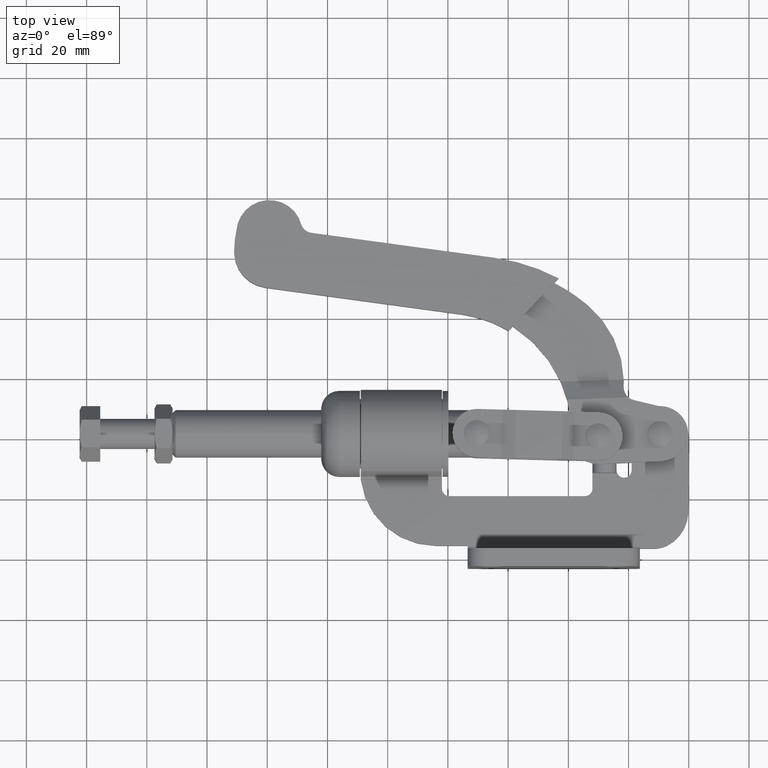
[diagram: clean part render]
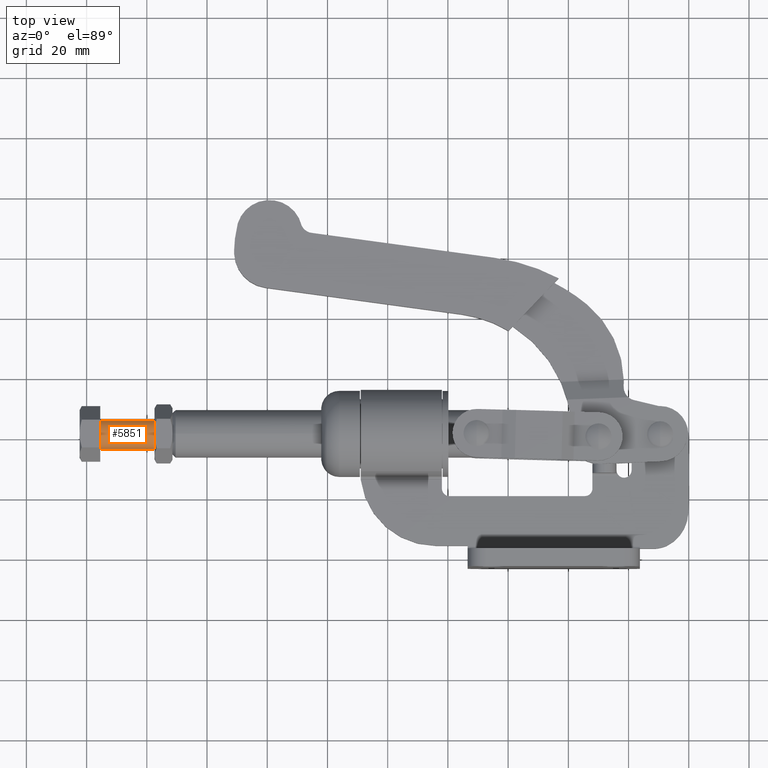
[diagram: same view with one face highlighted and labeled with its STEP entity id]
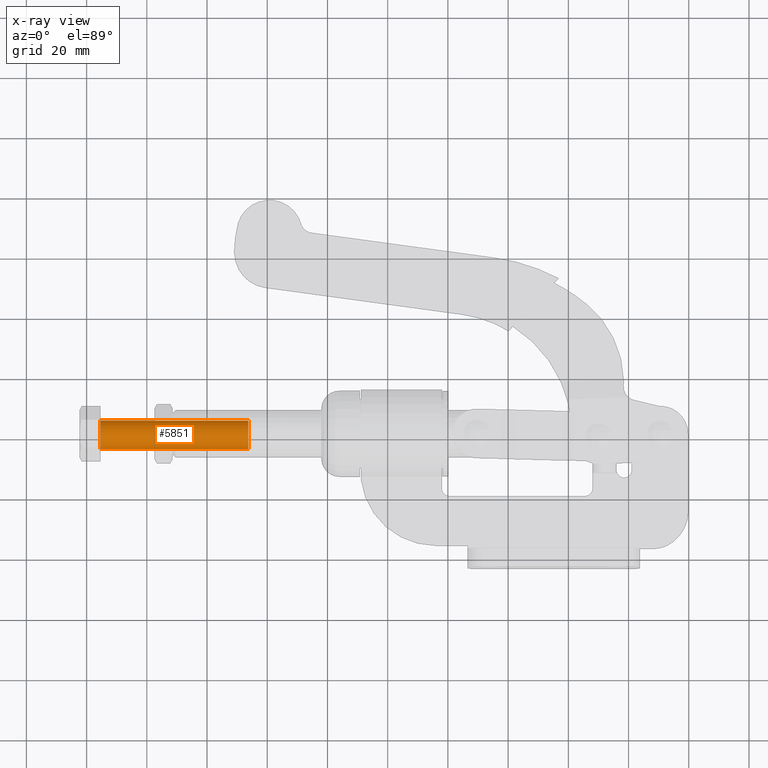
[diagram: x-ray of the same camera — body ghosted, the highlighted face saturated]
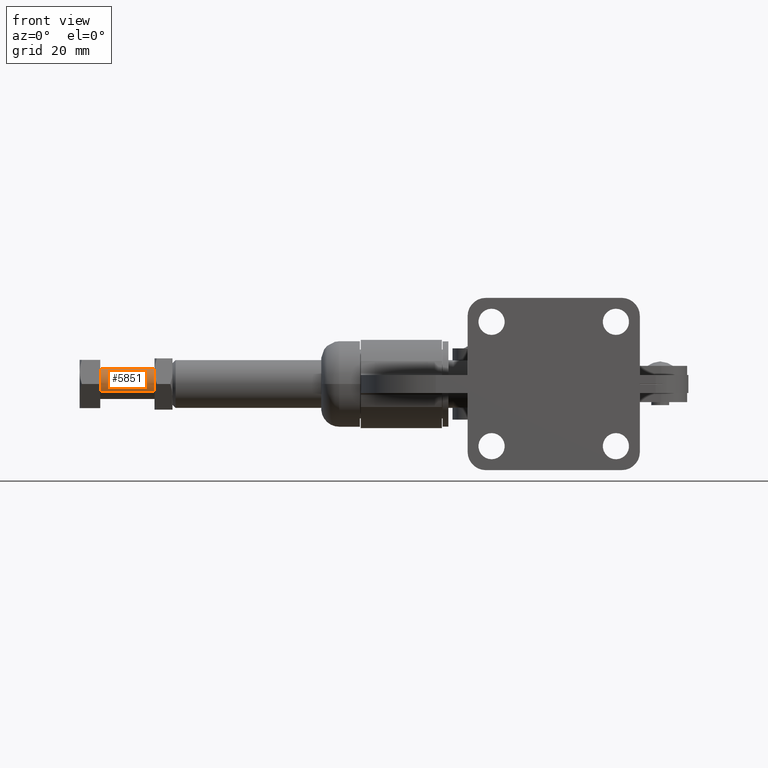
[diagram: same view with one face highlighted and labeled with its STEP entity id]
A machine part, top view. The second image highlights one B-rep face of the part: STEP entity #5851.
The next image is the same camera in x-ray: the body ghosted, the highlighted face saturated — about 0% of this face is hidden behind the body in this view.
A second angle (front view) of the same face is appended — the face is thin or edge-on in the first view.
In plain terms, the highlighted cylindrical surface (edge-blend (fillet) strip) has radius 5 mm, axis along (-1, -0, 0).
Its self-contained STEP definition (entity closure, byte-faithful):
#227 = DIRECTION ( 'NONE',  ( 0.0000000000000000000, -0.8660254037844387100, -0.4999999999999997200 ) ) ;
#293 = VERTEX_POINT ( 'NONE', #5777 ) ;
#370 = CIRCLE ( 'NONE', #5488, 5.000000000000000000 ) ;
#610 = DIRECTION ( 'NONE',  ( -1.000000000000000000, -8.395975145655177500E-019, 9.052449544118008500E-018 ) ) ;
#767 = VERTEX_POINT ( 'NONE', #4791 ) ;
#1285 = LINE ( 'NONE', #5093, #5508 ) ;
#1435 = CYLINDRICAL_SURFACE ( 'NONE', #1823, 5.000000000000000000 ) ;
#1823 = AXIS2_PLACEMENT_3D ( 'NONE', #5479, #6225, #227 ) ;
#2074 = CARTESIAN_POINT ( 'NONE',  ( -202.2997137379998400, 45.73012701892214000, 2.499999999999377800 ) ) ;
#2173 = CARTESIAN_POINT ( 'NONE',  ( -146.2777137379998200, 45.73012701892214000, 2.499999999999376900 ) ) ;
#2357 = CIRCLE ( 'NONE', #4096, 4.999999999999999100 ) ;
#2546 = DIRECTION ( 'NONE',  ( -1.000000000000000000, -8.395975145655177500E-019, 9.052449544118008500E-018 ) ) ;
#2826 = DIRECTION ( 'NONE',  ( -1.000000000000000000, -8.395975145655177500E-019, 9.052449544118008500E-018 ) ) ;
#2956 = FACE_OUTER_BOUND ( 'NONE', #8869, .T. ) ;
#3551 = VERTEX_POINT ( 'NONE', #7229 ) ;
#4096 = AXIS2_PLACEMENT_3D ( 'NONE', #8650, #4142, #9399 ) ;
#4142 = DIRECTION ( 'NONE',  ( -1.000000000000000000, -8.395975145655177500E-019, 9.052449544118008500E-018 ) ) ;
#4623 = VERTEX_POINT ( 'NONE', #2173 ) ;
#4791 = CARTESIAN_POINT ( 'NONE',  ( -146.2777137379998200, 37.06987298107775100, -2.500000000000620400 ) ) ;
#5093 = CARTESIAN_POINT ( 'NONE',  ( -202.2997137379998400, 37.06987298107775100, -2.500000000000620400 ) ) ;
#5479 = CARTESIAN_POINT ( 'NONE',  ( -202.2997137379998400, 41.39999999999994200, -6.214646852686911400E-013 ) ) ;
#5488 = AXIS2_PLACEMENT_3D ( 'NONE', #7018, #2546, #7783 ) ;
#5508 = VECTOR ( 'NONE', #610, 1000.000000000000000 ) ;
#5777 = CARTESIAN_POINT ( 'NONE',  ( -195.4497137379998400, 37.06987298107775100, -2.500000000000620400 ) ) ;
#5851 = ADVANCED_FACE ( 'NONE', ( #2956 ), #1435, .T. ) ;
#6225 = DIRECTION ( 'NONE',  ( -1.000000000000000000, -8.395975145655177500E-019, 9.052449544118008500E-018 ) ) ;
#6372 = EDGE_CURVE ( 'NONE', #293, #3551, #370, .T. ) ;
#6618 = EDGE_CURVE ( 'NONE', #4623, #3551, #9516, .T. ) ;
#6753 = EDGE_CURVE ( 'NONE', #767, #4623, #2357, .T. ) ;
#6795 = ORIENTED_EDGE ( 'NONE', *, *, #6618, .T. ) ;
#7018 = CARTESIAN_POINT ( 'NONE',  ( -195.4497137379998400, 41.39999999999994200, -6.214646852686911400E-013 ) ) ;
#7229 = CARTESIAN_POINT ( 'NONE',  ( -195.4497137379998400, 45.73012701892214000, 2.499999999999377400 ) ) ;
#7510 = EDGE_CURVE ( 'NONE', #767, #293, #1285, .T. ) ;
#7750 = VECTOR ( 'NONE', #2826, 1000.000000000000000 ) ;
#7783 = DIRECTION ( 'NONE',  ( 0.0000000000000000000, 0.8660254037844387100, 0.4999999999999997200 ) ) ;
#8650 = CARTESIAN_POINT ( 'NONE',  ( -146.2777137379998200, 41.39999999999994200, -6.218983661376853400E-013 ) ) ;
#8869 = EDGE_LOOP ( 'NONE', ( #9637, #6795, #9300, #9372 ) ) ;
#9300 = ORIENTED_EDGE ( 'NONE', *, *, #6372, .F. ) ;
#9372 = ORIENTED_EDGE ( 'NONE', *, *, #7510, .F. ) ;
#9399 = DIRECTION ( 'NONE',  ( 0.0000000000000000000, -0.8660254037844389300, -0.4999999999999997200 ) ) ;
#9516 = LINE ( 'NONE', #2074, #7750 ) ;
#9637 = ORIENTED_EDGE ( 'NONE', *, *, #6753, .T. ) ;